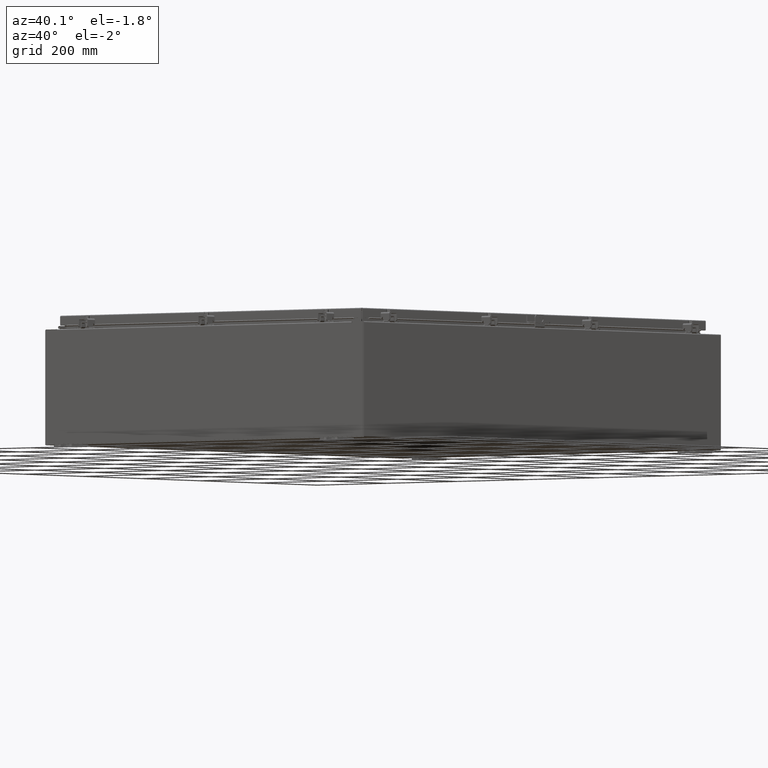
[diagram: clean part render]
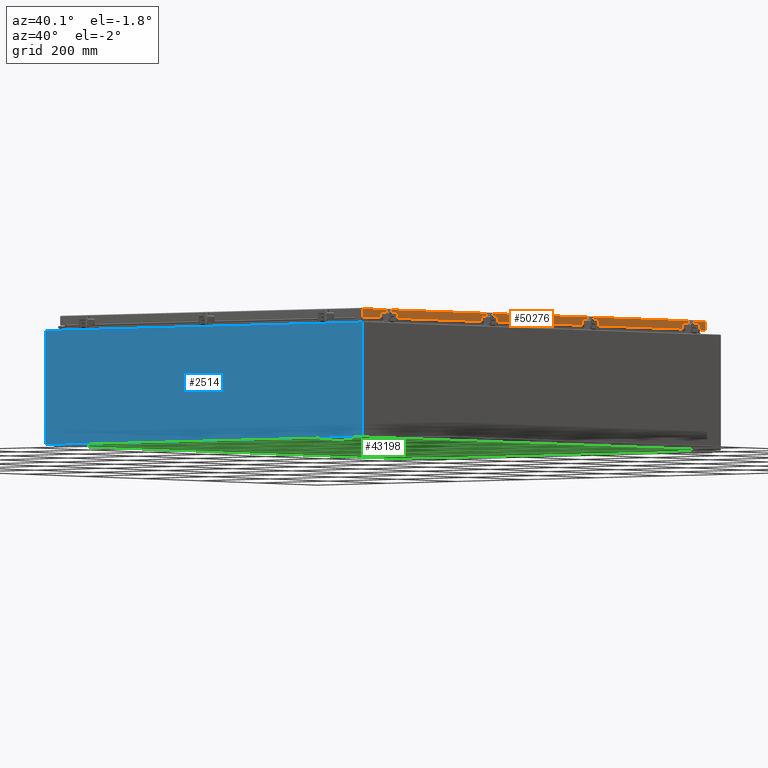
[diagram: same view with three faces highlighted in distinct colors, each labeled with its STEP entity id]
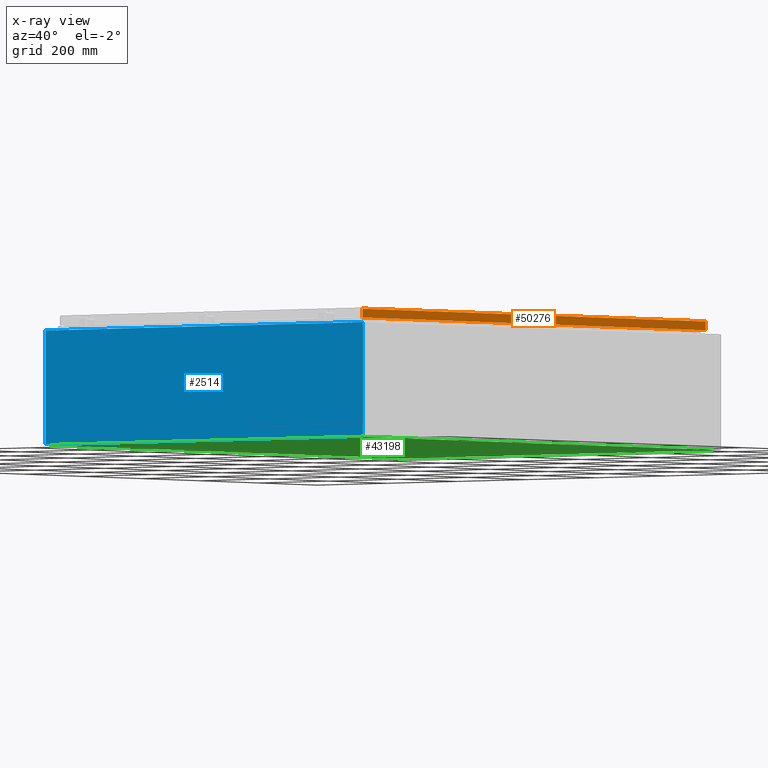
[diagram: x-ray of the same camera — body ghosted, the three highlighted faces saturated]
A machine part, auxiliary view with three faces highlighted in distinct colors.
The next image is the same camera in x-ray (body ghosted, the three faces saturated) — at least one of them is partly hidden behind the body in this view.
Their STEP definitions:

[orange] entity #50276 — the highlighted planar face has unit normal (1, 0, 0).
#508 = DIRECTION ( 'NONE',  ( 0.0000000000000000000, -1.000000000000000000, 0.0000000000000000000 ) ) ;
#2340 = VECTOR ( 'NONE', #508, 39.37007874015748100 ) ;
#3442 = CARTESIAN_POINT ( 'NONE',  ( 17.07799999999999600, -22.25515786437626200, -0.8500000000000020900 ) ) ;
#3670 = FACE_OUTER_BOUND ( 'NONE', #47746, .T. ) ;
#3844 = EDGE_CURVE ( 'NONE', #31721, #19482, #15801, .T. ) ;
#4813 = CARTESIAN_POINT ( 'NONE',  ( 17.07799999999999900, 0.0000000000000000000, 4.840166239667794100E-014 ) ) ;
#5449 = ORIENTED_EDGE ( 'NONE', *, *, #3844, .T. ) ;
#7132 = VECTOR ( 'NONE', #23691, 39.37007874015748100 ) ;
#7774 = ORIENTED_EDGE ( 'NONE', *, *, #19890, .F. ) ;
#8336 = CARTESIAN_POINT ( 'NONE',  ( 17.07799999999999900, 23.00515786437627600, 2.090458211578982100E-013 ) ) ;
#8874 = VECTOR ( 'NONE', #20915, 39.37007874015748100 ) ;
#9052 = VERTEX_POINT ( 'NONE', #49634 ) ;
#9055 = DIRECTION ( 'NONE',  ( 2.818880942772360100E-015, 0.0000000000000000000, -1.000000000000000000 ) ) ;
#9363 = DIRECTION ( 'NONE',  ( -2.818880942772360100E-015, -6.982962677686267500E-015, 1.000000000000000000 ) ) ;
#10493 = DIRECTION ( 'NONE',  ( 0.0000000000000000000, -1.000000000000000000, 0.0000000000000000000 ) ) ;
#11594 = AXIS2_PLACEMENT_3D ( 'NONE', #4813, #33934, #9055 ) ;
#13330 = EDGE_CURVE ( 'NONE', #19482, #18007, #18051, .T. ) ;
#14020 = ORIENTED_EDGE ( 'NONE', *, *, #28185, .F. ) ;
#14938 = VERTEX_POINT ( 'NONE', #3442 ) ;
#15327 = LINE ( 'NONE', #29638, #2340 ) ;
#15337 = EDGE_CURVE ( 'NONE', #31721, #9052, #15942, .T. ) ;
#15436 = CARTESIAN_POINT ( 'NONE',  ( 17.07799999999999900, 0.0000000000000000000, -0.08770000000000007000 ) ) ;
#15801 = LINE ( 'NONE', #8336, #26818 ) ;
#15942 = LINE ( 'NONE', #20008, #49071 ) ;
#16273 = CARTESIAN_POINT ( 'NONE',  ( 17.07799999999999900, -23.00515786437626900, -0.08770000000000007000 ) ) ;
#18007 = VERTEX_POINT ( 'NONE', #16273 ) ;
#18051 = LINE ( 'NONE', #15436, #26433 ) ;
#19074 = ORIENTED_EDGE ( 'NONE', *, *, #32562, .F. ) ;
#19482 = VERTEX_POINT ( 'NONE', #26954 ) ;
#19566 = CARTESIAN_POINT ( 'NONE',  ( 17.07799999999999900, -23.00515786437626900, -0.07469999999999978000 ) ) ;
#19890 = EDGE_CURVE ( 'NONE', #9052, #14938, #15327, .T. ) ;
#20008 = CARTESIAN_POINT ( 'NONE',  ( 17.07800000000000300, -23.09400000000000100, -0.8499999999999996400 ) ) ;
#20915 = DIRECTION ( 'NONE',  ( 0.0000000000000000000, -1.000000000000000000, 0.0000000000000000000 ) ) ;
#21737 = ORIENTED_EDGE ( 'NONE', *, *, #13330, .T. ) ;
#22637 = CARTESIAN_POINT ( 'NONE',  ( 17.07800000000000300, -23.00515786437626200, -0.8499999999999996400 ) ) ;
#23691 = DIRECTION ( 'NONE',  ( -2.818880942772360100E-015, -6.982962677686267500E-015, 1.000000000000000000 ) ) ;
#26433 = VECTOR ( 'NONE', #10493, 39.37007874015748100 ) ;
#26818 = VECTOR ( 'NONE', #9363, 39.37007874015748100 ) ;
#26954 = CARTESIAN_POINT ( 'NONE',  ( 17.07799999999999900, 23.00515786437627200, -0.08770000000000007000 ) ) ;
#28185 = EDGE_CURVE ( 'NONE', #14938, #50538, #28351, .T. ) ;
#28351 = LINE ( 'NONE', #49943, #8874 ) ;
#29638 = CARTESIAN_POINT ( 'NONE',  ( 17.07799999999999600, 22.25515786437628000, -0.8500000000000020900 ) ) ;
#29728 = PLANE ( 'NONE',  #11594 ) ;
#31721 = VERTEX_POINT ( 'NONE', #32657 ) ;
#32562 = EDGE_CURVE ( 'NONE', #50538, #18007, #40295, .T. ) ;
#32657 = CARTESIAN_POINT ( 'NONE',  ( 17.07800000000000300, 23.00515786437628000, -0.8499999999999996400 ) ) ;
#33934 = DIRECTION ( 'NONE',  ( 1.000000000000000000, 0.0000000000000000000, 2.818880942772360100E-015 ) ) ;
#35252 = DIRECTION ( 'NONE',  ( 0.0000000000000000000, -1.000000000000000000, 0.0000000000000000000 ) ) ;
#39221 = ORIENTED_EDGE ( 'NONE', *, *, #15337, .F. ) ;
#40295 = LINE ( 'NONE', #19566, #7132 ) ;
#47746 = EDGE_LOOP ( 'NONE', ( #19074, #14020, #7774, #39221, #5449, #21737 ) ) ;
#49071 = VECTOR ( 'NONE', #35252, 39.37007874015748100 ) ;
#49634 = CARTESIAN_POINT ( 'NONE',  ( 17.07799999999999600, 22.25515786437627200, -0.8500000000000020900 ) ) ;
#49943 = CARTESIAN_POINT ( 'NONE',  ( 17.07800000000000300, -23.09400000000000100, -0.8499999999999996400 ) ) ;
#50276 = ADVANCED_FACE ( 'NONE', ( #3670 ), #29728, .T. ) ;
#50538 = VERTEX_POINT ( 'NONE', #22637 ) ;

[blue] entity #2514 — the highlighted planar face has unit normal (-0, 1, -0).
#515 = AXIS2_PLACEMENT_3D ( 'NONE', #43712, #18926, #47922 ) ;
#941 = ORIENTED_EDGE ( 'NONE', *, *, #43873, .T. ) ;
#2514 = ADVANCED_FACE ( 'NONE', ( #49712 ), #17068, .F. ) ;
#3391 = VERTEX_POINT ( 'NONE', #9566 ) ;
#3705 = CARTESIAN_POINT ( 'NONE',  ( 16.63720000000000400, 0.0000000000000000000, 4.874950000000000100 ) ) ;
#4798 = ORIENTED_EDGE ( 'NONE', *, *, #36936, .F. ) ;
#4978 = DIRECTION ( 'NONE',  ( 0.0000000000000000000, -0.0000000000000000000, -1.000000000000000000 ) ) ;
#5354 = CARTESIAN_POINT ( 'NONE',  ( -17.92530000000000000, 0.0000000000000000000, 4.925300000000000000 ) ) ;
#5476 = VECTOR ( 'NONE', #45190, 39.37007874015748100 ) ;
#5878 = ORIENTED_EDGE ( 'NONE', *, *, #50822, .F. ) ;
#6333 = ORIENTED_EDGE ( 'NONE', *, *, #36699, .F. ) ;
#6447 = CARTESIAN_POINT ( 'NONE',  ( -17.92530000000000000, 0.0000000000000000000, 4.925300000000000000 ) ) ;
#7095 = VERTEX_POINT ( 'NONE', #22792 ) ;
#7224 = CARTESIAN_POINT ( 'NONE',  ( 17.92530000000000000, 0.0000000000000000000, 4.925300000000000000 ) ) ;
#8001 = EDGE_LOOP ( 'NONE', ( #4798, #6333, #5878, #36878, #14794, #36494, #47196, #32630, #36945, #15376, #13003, #941 ) ) ;
#9566 = CARTESIAN_POINT ( 'NONE',  ( -16.67455000000000000, 0.0000000000000000000, 4.925300000000000000 ) ) ;
#10046 = EDGE_CURVE ( 'NONE', #25802, #13328, #49341, .T. ) ;
#10372 = VECTOR ( 'NONE', #44384, 39.37007874015748100 ) ;
#11335 = VECTOR ( 'NONE', #34030, 39.37007874015748100 ) ;
#11491 = DIRECTION ( 'NONE',  ( -0.0000000000000000000, 1.000000000000000000, -0.0000000000000000000 ) ) ;
#12189 = VERTEX_POINT ( 'NONE', #37223 ) ;
#13003 = ORIENTED_EDGE ( 'NONE', *, *, #16380, .T. ) ;
#13328 = VERTEX_POINT ( 'NONE', #17648 ) ;
#13851 = CARTESIAN_POINT ( 'NONE',  ( 0.0000000000000000000, 0.0000000000000000000, 0.0000000000000000000 ) ) ;
#14794 = ORIENTED_EDGE ( 'NONE', *, *, #40499, .F. ) ;
#15024 = CARTESIAN_POINT ( 'NONE',  ( -16.63720000000000400, -0.0000000000000000000, 4.874950000000000100 ) ) ;
#15376 = ORIENTED_EDGE ( 'NONE', *, *, #20059, .T. ) ;
#16380 = EDGE_CURVE ( 'NONE', #7095, #24742, #43702, .T. ) ;
#16472 = VERTEX_POINT ( 'NONE', #21001 ) ;
#16516 = VECTOR ( 'NONE', #49695, 39.37007874015748100 ) ;
#16745 = LINE ( 'NONE', #43058, #25164 ) ;
#17068 = PLANE ( 'NONE',  #23791 ) ;
#17416 = DIRECTION ( 'NONE',  ( 0.0000000000000000000, -1.000000000000000000, 0.0000000000000000000 ) ) ;
#17648 = CARTESIAN_POINT ( 'NONE',  ( 16.63720000000000400, 0.0000000000000000000, 4.912300000000000100 ) ) ;
#18926 = DIRECTION ( 'NONE',  ( -0.0000000000000000000, 1.000000000000000000, -0.0000000000000000000 ) ) ;
#20059 = EDGE_CURVE ( 'NONE', #16472, #7095, #16745, .T. ) ;
#20250 = LINE ( 'NONE', #37015, #50763 ) ;
#21001 = CARTESIAN_POINT ( 'NONE',  ( 17.92530000000000000, 0.0000000000000000000, -4.925300000000000000 ) ) ;
#22710 = LINE ( 'NONE', #48423, #10372 ) ;
#22792 = CARTESIAN_POINT ( 'NONE',  ( -17.92530000000000000, 0.0000000000000000000, -4.925300000000000000 ) ) ;
#23791 = AXIS2_PLACEMENT_3D ( 'NONE', #13851, #17416, #4978 ) ;
#24742 = VERTEX_POINT ( 'NONE', #6447 ) ;
#25164 = VECTOR ( 'NONE', #47246, 39.37007874015748100 ) ;
#25802 = VERTEX_POINT ( 'NONE', #31597 ) ;
#26350 = DIRECTION ( 'NONE',  ( 1.000000000000000000, 0.0000000000000000000, 0.0000000000000000000 ) ) ;
#26812 = DIRECTION ( 'NONE',  ( -0.0000000000000000000, -0.0000000000000000000, 1.000000000000000000 ) ) ;
#27334 = CIRCLE ( 'NONE', #44380, 0.01867499999999949400 ) ;
#28397 = VECTOR ( 'NONE', #37514, 39.37007874015748100 ) ;
#28882 = LINE ( 'NONE', #36885, #5476 ) ;
#29138 = CARTESIAN_POINT ( 'NONE',  ( 17.92530000000000000, 0.0000000000000000000, 4.925300000000000000 ) ) ;
#31597 = CARTESIAN_POINT ( 'NONE',  ( -16.63720000000000400, -7.171100983368691200E-016, 4.912300000000000100 ) ) ;
#31752 = VERTEX_POINT ( 'NONE', #3705 ) ;
#32630 = ORIENTED_EDGE ( 'NONE', *, *, #34821, .T. ) ;
#33446 = LINE ( 'NONE', #50556, #11335 ) ;
#34030 = DIRECTION ( 'NONE',  ( 1.000000000000000000, 0.0000000000000000000, 0.0000000000000000000 ) ) ;
#34821 = EDGE_CURVE ( 'NONE', #12189, #41018, #33446, .T. ) ;
#35138 = EDGE_CURVE ( 'NONE', #12189, #42657, #49648, .T. ) ;
#36392 = CARTESIAN_POINT ( 'NONE',  ( 16.65587500000000200, 0.0000000000000000000, 4.874950000000000100 ) ) ;
#36494 = ORIENTED_EDGE ( 'NONE', *, *, #47098, .F. ) ;
#36699 = EDGE_CURVE ( 'NONE', #40946, #50609, #40346, .T. ) ;
#36878 = ORIENTED_EDGE ( 'NONE', *, *, #10046, .T. ) ;
#36885 = CARTESIAN_POINT ( 'NONE',  ( 16.63720000000000400, 0.0000000000000000000, 0.0000000000000000000 ) ) ;
#36936 = EDGE_CURVE ( 'NONE', #50609, #3391, #20250, .T. ) ;
#36945 = ORIENTED_EDGE ( 'NONE', *, *, #45422, .T. ) ;
#37015 = CARTESIAN_POINT ( 'NONE',  ( -16.67455000000000000, -0.0000000000000000000, 0.0000000000000000000 ) ) ;
#37223 = CARTESIAN_POINT ( 'NONE',  ( 16.67455000000000700, 0.0000000000000000000, 4.925300000000000000 ) ) ;
#37514 = DIRECTION ( 'NONE',  ( 0.0000000000000000000, 0.0000000000000000000, -1.000000000000000000 ) ) ;
#40346 = CIRCLE ( 'NONE', #515, 0.01867499999999949400 ) ;
#40402 = CARTESIAN_POINT ( 'NONE',  ( -16.67455000000000000, 0.0000000000000000000, 4.874950000000000100 ) ) ;
#40499 = EDGE_CURVE ( 'NONE', #31752, #13328, #28882, .T. ) ;
#40549 = DIRECTION ( 'NONE',  ( 0.0000000000000000000, 0.0000000000000000000, -1.000000000000000000 ) ) ;
#40733 = LINE ( 'NONE', #29138, #28397 ) ;
#40946 = VERTEX_POINT ( 'NONE', #15024 ) ;
#41018 = VERTEX_POINT ( 'NONE', #7224 ) ;
#42657 = VERTEX_POINT ( 'NONE', #43860 ) ;
#43058 = CARTESIAN_POINT ( 'NONE',  ( -17.92530000000000000, 0.0000000000000000000, -4.925300000000000000 ) ) ;
#43702 = LINE ( 'NONE', #5354, #52192 ) ;
#43712 = CARTESIAN_POINT ( 'NONE',  ( -16.65587500000000200, 0.0000000000000000000, 4.874950000000000100 ) ) ;
#43860 = CARTESIAN_POINT ( 'NONE',  ( 16.67455000000000000, 0.0000000000000000000, 4.874950000000000100 ) ) ;
#43873 = EDGE_CURVE ( 'NONE', #24742, #3391, #22710, .T. ) ;
#43900 = LINE ( 'NONE', #45984, #52407 ) ;
#44328 = CARTESIAN_POINT ( 'NONE',  ( -16.63720000000000400, -7.171100983368691200E-016, 4.912300000000000100 ) ) ;
#44380 = AXIS2_PLACEMENT_3D ( 'NONE', #36392, #11491, #40549 ) ;
#44384 = DIRECTION ( 'NONE',  ( 1.000000000000000000, 0.0000000000000000000, 0.0000000000000000000 ) ) ;
#45190 = DIRECTION ( 'NONE',  ( 0.0000000000000000000, 0.0000000000000000000, 1.000000000000000000 ) ) ;
#45422 = EDGE_CURVE ( 'NONE', #41018, #16472, #40733, .T. ) ;
#45465 = CARTESIAN_POINT ( 'NONE',  ( 16.67454999999957700, -0.0000000000000000000, -1.447541957108341500E-012 ) ) ;
#45984 = CARTESIAN_POINT ( 'NONE',  ( -16.63720000000000400, -0.0000000000000000000, 0.0000000000000000000 ) ) ;
#47098 = EDGE_CURVE ( 'NONE', #42657, #31752, #27334, .T. ) ;
#47196 = ORIENTED_EDGE ( 'NONE', *, *, #35138, .F. ) ;
#47246 = DIRECTION ( 'NONE',  ( -1.000000000000000000, -0.0000000000000000000, -0.0000000000000000000 ) ) ;
#47922 = DIRECTION ( 'NONE',  ( 0.0000000000000000000, 0.0000000000000000000, -1.000000000000000000 ) ) ;
#48000 = VECTOR ( 'NONE', #26350, 39.37007874015748100 ) ;
#48423 = CARTESIAN_POINT ( 'NONE',  ( -17.92530000000000000, 0.0000000000000000000, 4.925300000000000000 ) ) ;
#49341 = LINE ( 'NONE', #44328, #48000 ) ;
#49648 = LINE ( 'NONE', #45465, #16516 ) ;
#49695 = DIRECTION ( 'NONE',  ( -8.681145560800009800E-014, 0.0000000000000000000, -1.000000000000000000 ) ) ;
#49712 = FACE_OUTER_BOUND ( 'NONE', #8001, .T. ) ;
#50226 = DIRECTION ( 'NONE',  ( 0.0000000000000000000, 0.0000000000000000000, -1.000000000000000000 ) ) ;
#50556 = CARTESIAN_POINT ( 'NONE',  ( -17.92530000000000000, 0.0000000000000000000, 4.925300000000000000 ) ) ;
#50609 = VERTEX_POINT ( 'NONE', #40402 ) ;
#50763 = VECTOR ( 'NONE', #53740, 39.37007874015748100 ) ;
#50822 = EDGE_CURVE ( 'NONE', #25802, #40946, #43900, .T. ) ;
#52192 = VECTOR ( 'NONE', #26812, 39.37007874015748100 ) ;
#52407 = VECTOR ( 'NONE', #50226, 39.37007874015748100 ) ;
#53740 = DIRECTION ( 'NONE',  ( 0.0000000000000000000, 0.0000000000000000000, 1.000000000000000000 ) ) ;

[green] entity #43198 — the highlighted planar face has unit normal (0, 0, -1).
#1225 = DIRECTION ( 'NONE',  ( -0.0000000000000000000, 1.000000000000000000, -0.0000000000000000000 ) ) ;
#4101 = LINE ( 'NONE', #20290, #45715 ) ;
#4845 = VERTEX_POINT ( 'NONE', #49666 ) ;
#5265 = CARTESIAN_POINT ( 'NONE',  ( 17.91229999999999500, 23.92529999999998900, -0.07469999999999688000 ) ) ;
#8159 = EDGE_CURVE ( 'NONE', #45840, #52278, #15667, .T. ) ;
#9500 = CARTESIAN_POINT ( 'NONE',  ( -17.91230000000000500, 23.92529999999998900, -0.07470000000000000300 ) ) ;
#9508 = DIRECTION ( 'NONE',  ( -0.0000000000000000000, -1.000000000000000000, -8.208677865577646300E-017 ) ) ;
#10275 = DIRECTION ( 'NONE',  ( 0.0000000000000000000, 0.0000000000000000000, -1.000000000000000000 ) ) ;
#10750 = ORIENTED_EDGE ( 'NONE', *, *, #8159, .T. ) ;
#15112 = VECTOR ( 'NONE', #15287, 39.37007874015748100 ) ;
#15287 = DIRECTION ( 'NONE',  ( 1.000000000000000000, 1.214154663850783700E-016, 0.0000000000000000000 ) ) ;
#15667 = LINE ( 'NONE', #36674, #46171 ) ;
#19959 = EDGE_CURVE ( 'NONE', #4845, #40486, #20659, .T. ) ;
#20290 = CARTESIAN_POINT ( 'NONE',  ( -18.00000000000000400, 23.92530000000000000, -0.07470000000000000300 ) ) ;
#20659 = LINE ( 'NONE', #5265, #41403 ) ;
#24419 = DIRECTION ( 'NONE',  ( -1.000000000000000000, -0.0000000000000000000, -0.0000000000000000000 ) ) ;
#26196 = LINE ( 'NONE', #44323, #15112 ) ;
#29314 = AXIS2_PLACEMENT_3D ( 'NONE', #35174, #10275, #39314 ) ;
#32544 = CARTESIAN_POINT ( 'NONE',  ( 17.91229999999999500, -23.92530000000000000, -0.07470000000000000300 ) ) ;
#35174 = CARTESIAN_POINT ( 'NONE',  ( 0.0000000000000000000, 0.0000000000000000000, -0.07470000000000000300 ) ) ;
#35608 = EDGE_CURVE ( 'NONE', #45840, #40486, #26196, .T. ) ;
#35830 = ORIENTED_EDGE ( 'NONE', *, *, #41718, .F. ) ;
#36674 = CARTESIAN_POINT ( 'NONE',  ( -17.91230000000000500, -23.92529999999998900, -0.07469999999999994700 ) ) ;
#36954 = EDGE_LOOP ( 'NONE', ( #47834, #10750, #35830, #46118 ) ) ;
#39314 = DIRECTION ( 'NONE',  ( -1.000000000000000000, 0.0000000000000000000, -0.0000000000000000000 ) ) ;
#40486 = VERTEX_POINT ( 'NONE', #32544 ) ;
#41403 = VECTOR ( 'NONE', #9508, 39.37007874015748100 ) ;
#41718 = EDGE_CURVE ( 'NONE', #4845, #52278, #4101, .T. ) ;
#43198 = ADVANCED_FACE ( 'NONE', ( #54009 ), #47492, .T. ) ;
#44323 = CARTESIAN_POINT ( 'NONE',  ( -18.00000000000000400, -23.92530000000000400, -0.07470000000000000300 ) ) ;
#45715 = VECTOR ( 'NONE', #24419, 39.37007874015748100 ) ;
#45840 = VERTEX_POINT ( 'NONE', #48179 ) ;
#46118 = ORIENTED_EDGE ( 'NONE', *, *, #19959, .T. ) ;
#46171 = VECTOR ( 'NONE', #1225, 39.37007874015748100 ) ;
#47492 = PLANE ( 'NONE',  #29314 ) ;
#47834 = ORIENTED_EDGE ( 'NONE', *, *, #35608, .F. ) ;
#48179 = CARTESIAN_POINT ( 'NONE',  ( -17.91230000000000500, -23.92529999999998600, -0.07469999999999994700 ) ) ;
#49666 = CARTESIAN_POINT ( 'NONE',  ( 17.91229999999999500, 23.92529999999998600, -0.07469999999999688000 ) ) ;
#52278 = VERTEX_POINT ( 'NONE', #9500 ) ;
#54009 = FACE_OUTER_BOUND ( 'NONE', #36954, .T. ) ;